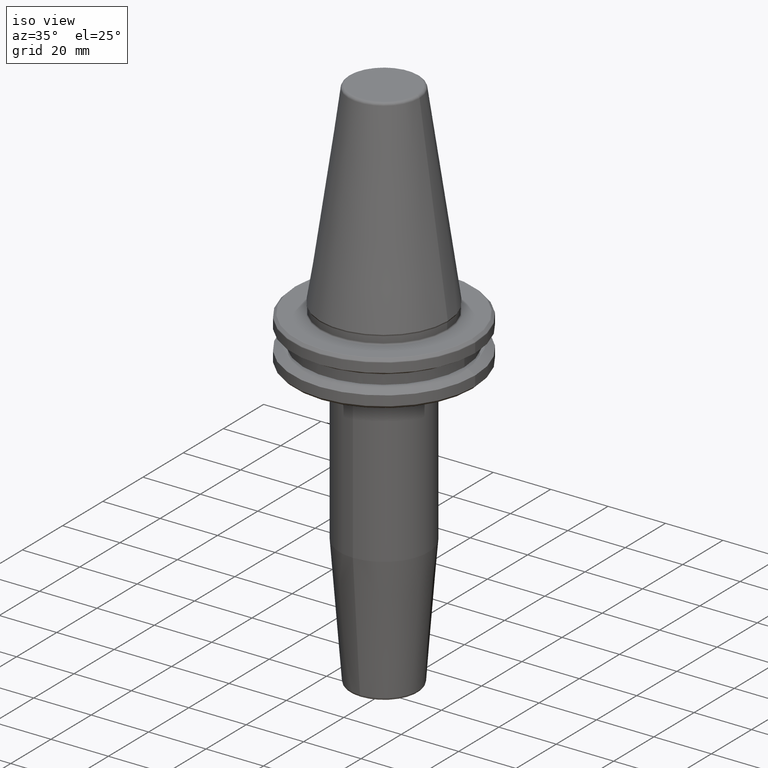
[diagram: clean part render]
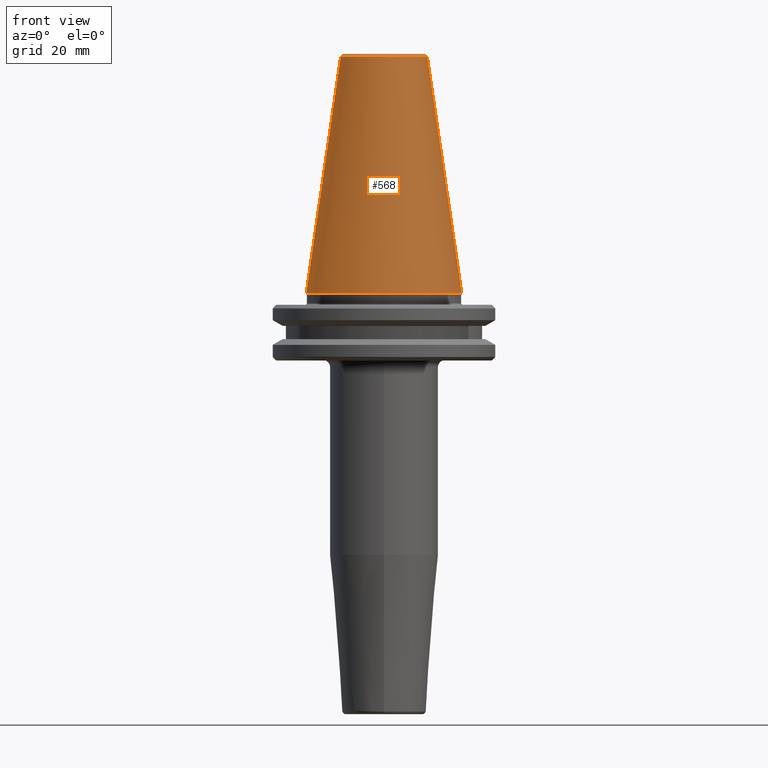
[diagram: tour spotlight — one face highlighted and labeled with its STEP entity id]
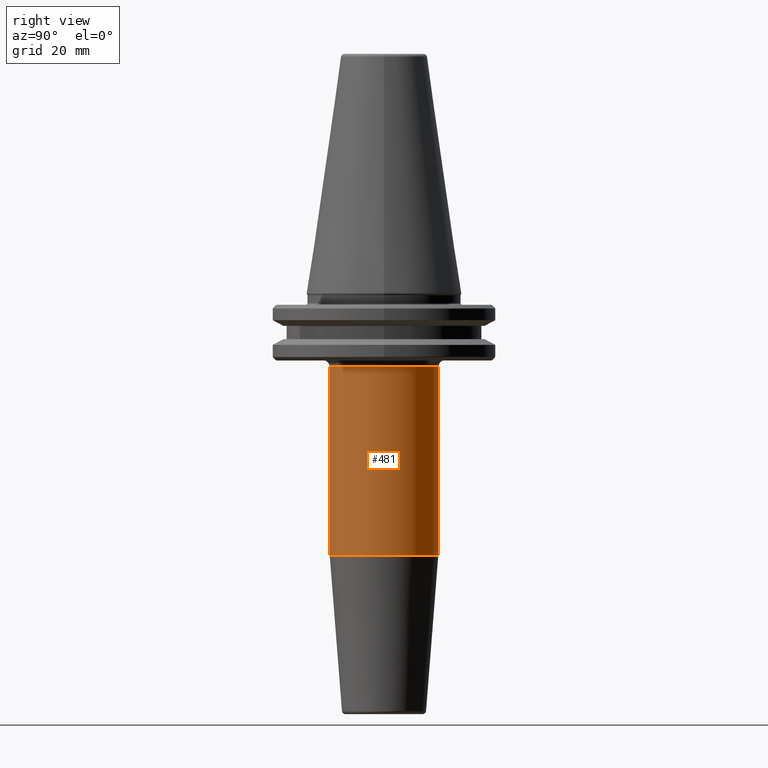
[diagram: tour spotlight — one face highlighted and labeled with its STEP entity id]
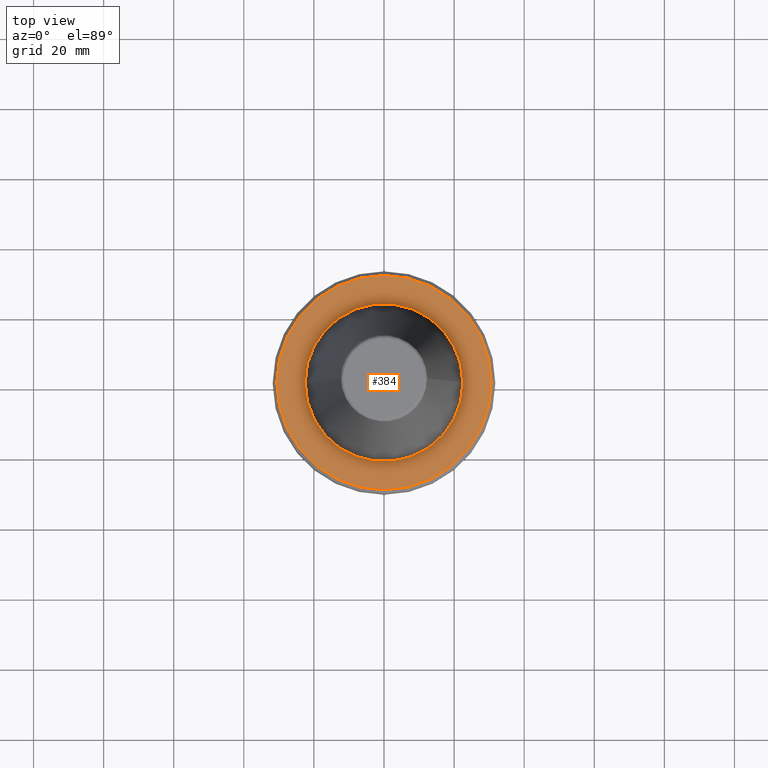
[diagram: tour spotlight — one face highlighted and labeled with its STEP entity id]
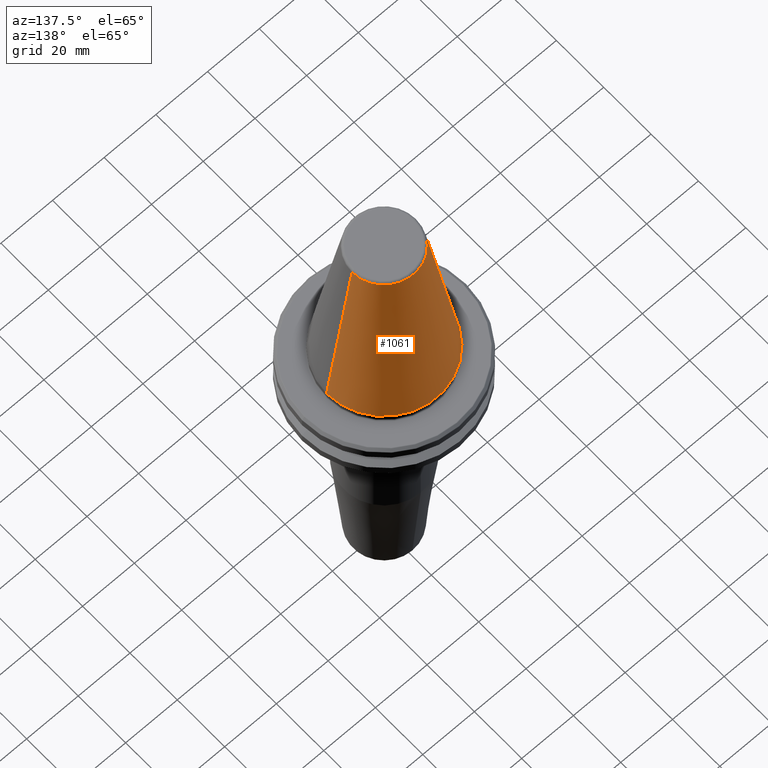
[diagram: tour spotlight — one face highlighted and labeled with its STEP entity id]
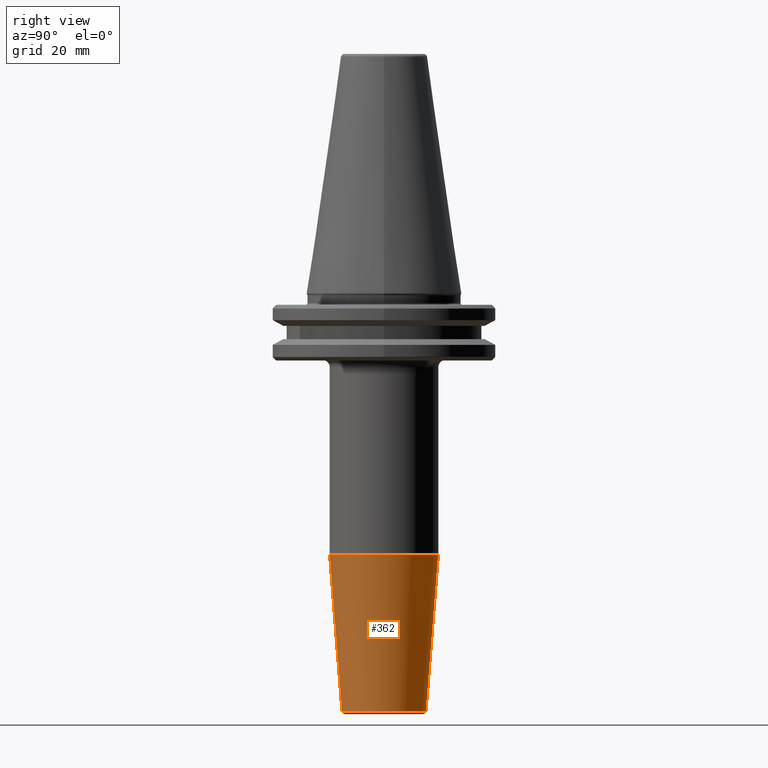
[diagram: tour spotlight — one face highlighted and labeled with its STEP entity id]
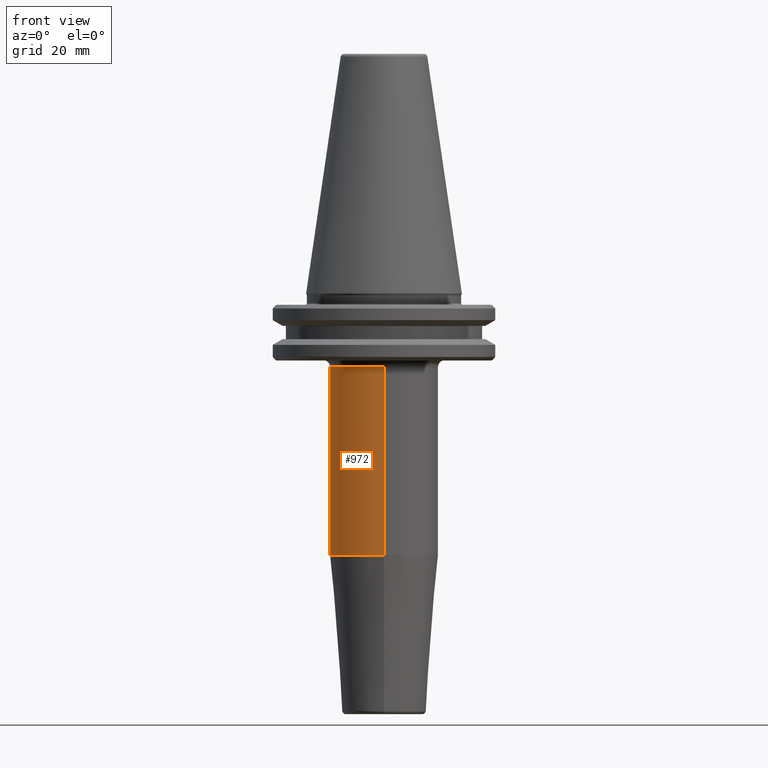
[diagram: tour spotlight — one face highlighted and labeled with its STEP entity id]
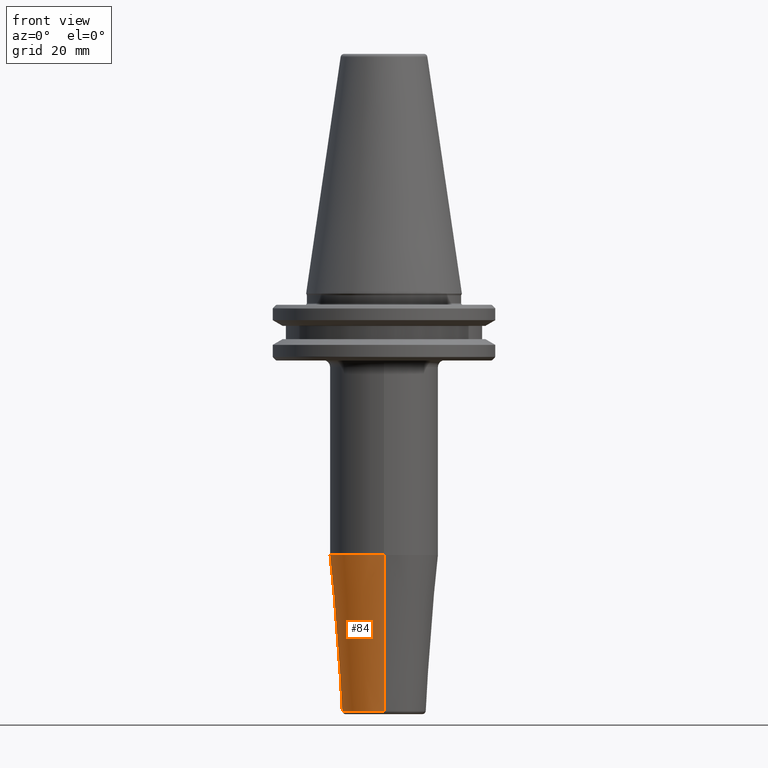
[diagram: tour spotlight — one face highlighted and labeled with its STEP entity id]
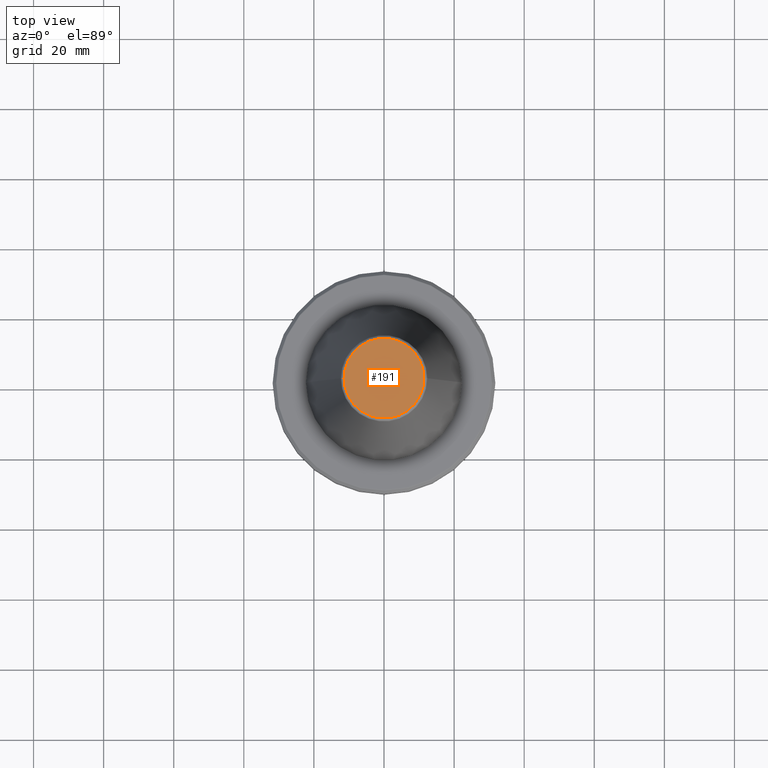
[diagram: tour spotlight — one face highlighted and labeled with its STEP entity id]
A machine part: a face-by-face anatomy tour. The part has 46 B-rep faces; the first image is the clean iso view, then the 8 largest visible faces are spotlighted one at a time (largest first), each with its STEP entity span.

Face 1 — front view, entity #568. In plain terms, the highlighted conical surface has half-angle 8.297 deg.
Definition (entity closure, byte-faithful):
#57 = CONICAL_SURFACE ( 'NONE', #1147, 12.37469537611110800, 0.1448138465474191100 ) ;
#86 = DIRECTION ( 'NONE',  ( 0.1443082272673071000, 1.767266086135364600E-017, -0.9895327864921743500 ) ) ;
#97 = EDGE_LOOP ( 'NONE', ( #1109, #320, #625, #906 ) ) ;
#113 = DIRECTION ( 'NONE',  ( 0.0000000000000000000, 0.0000000000000000000, -1.000000000000000000 ) ) ;
#178 = DIRECTION ( 'NONE',  ( -0.1443082272673071000, 0.0000000000000000000, -0.9895327864921743500 ) ) ;
#227 = EDGE_CURVE ( 'NONE', #1079, #615, #721, .T. ) ;
#288 = EDGE_CURVE ( 'NONE', #615, #353, #1216, .T. ) ;
#301 = AXIS2_PLACEMENT_3D ( 'NONE', #670, #1095, #1087 ) ;
#320 = ORIENTED_EDGE ( 'NONE', *, *, #388, .F. ) ;
#353 = VERTEX_POINT ( 'NONE', #1077 ) ;
#355 = CARTESIAN_POINT ( 'NONE',  ( -22.22500000000000500, 2.721777511104993200E-015, 0.0000000000000000000 ) ) ;
#388 = EDGE_CURVE ( 'NONE', #1079, #1064, #891, .T. ) ;
#444 = VECTOR ( 'NONE', #178, 1000.000000000000000 ) ;
#496 = DIRECTION ( 'NONE',  ( 1.000000000000000000, 0.0000000000000000000, 0.0000000000000000000 ) ) ;
#497 = FACE_OUTER_BOUND ( 'NONE', #97, .T. ) ;
#501 = DIRECTION ( 'NONE',  ( -0.0000000000000000000, -0.0000000000000000000, 1.000000000000000000 ) ) ;
#568 = ADVANCED_FACE ( 'NONE', ( #497 ), #57, .T. ) ;
#576 = CARTESIAN_POINT ( 'NONE',  ( -12.37469537611110800, 0.0000000000000000000, 67.54430822726729400 ) ) ;
#615 = VERTEX_POINT ( 'NONE', #355 ) ;
#624 = LINE ( 'NONE', #1220, #1114 ) ;
#625 = ORIENTED_EDGE ( 'NONE', *, *, #227, .T. ) ;
#670 = CARTESIAN_POINT ( 'NONE',  ( 0.0000000000000000000, 0.0000000000000000000, 67.54430822726729400 ) ) ;
#721 = LINE ( 'NONE', #853, #444 ) ;
#783 = CARTESIAN_POINT ( 'NONE',  ( 0.0000000000000000000, 0.0000000000000000000, 0.0000000000000000000 ) ) ;
#817 = EDGE_CURVE ( 'NONE', #1064, #353, #624, .T. ) ;
#834 = AXIS2_PLACEMENT_3D ( 'NONE', #783, #501, #496 ) ;
#853 = CARTESIAN_POINT ( 'NONE',  ( -12.37469537611110800, 0.0000000000000000000, 67.54430822726729400 ) ) ;
#891 = CIRCLE ( 'NONE', #301, 12.37469537611110800 ) ;
#906 = ORIENTED_EDGE ( 'NONE', *, *, #288, .T. ) ;
#975 = DIRECTION ( 'NONE',  ( -1.000000000000000000, 0.0000000000000000000, 0.0000000000000000000 ) ) ;
#1064 = VERTEX_POINT ( 'NONE', #1110 ) ;
#1077 = CARTESIAN_POINT ( 'NONE',  ( 22.22500000000000500, 0.0000000000000000000, 0.0000000000000000000 ) ) ;
#1079 = VERTEX_POINT ( 'NONE', #576 ) ;
#1087 = DIRECTION ( 'NONE',  ( 1.000000000000000000, 0.0000000000000000000, 0.0000000000000000000 ) ) ;
#1095 = DIRECTION ( 'NONE',  ( -0.0000000000000000000, -0.0000000000000000000, 1.000000000000000000 ) ) ;
#1109 = ORIENTED_EDGE ( 'NONE', *, *, #817, .F. ) ;
#1110 = CARTESIAN_POINT ( 'NONE',  ( 12.37469537611110800, 2.118620309691397700E-015, 67.54430822726729400 ) ) ;
#1114 = VECTOR ( 'NONE', #86, 1000.000000000000000 ) ;
#1147 = AXIS2_PLACEMENT_3D ( 'NONE', #1172, #113, #975 ) ;
#1172 = CARTESIAN_POINT ( 'NONE',  ( 0.0000000000000000000, 0.0000000000000000000, 67.54430822726729400 ) ) ;
#1216 = CIRCLE ( 'NONE', #834, 22.22500000000000500 ) ;
#1220 = CARTESIAN_POINT ( 'NONE',  ( 12.37469537611110800, 1.515463108277802100E-015, 67.54430822726729400 ) ) ;

Face 2 — right view, entity #481. In plain terms, the highlighted cylindrical surface (partial cylindrical patch) has radius 15.5 mm, axis along (-0, 0, -1).
Definition (entity closure, byte-faithful):
#44 = DIRECTION ( 'NONE',  ( -0.0000000000000000000, 1.946757673717420000E-016, -1.000000000000000000 ) ) ;
#81 = LINE ( 'NONE', #346, #540 ) ;
#114 = EDGE_CURVE ( 'NONE', #369, #626, #673, .T. ) ;
#140 = ORIENTED_EDGE ( 'NONE', *, *, #478, .F. ) ;
#150 = DIRECTION ( 'NONE',  ( 0.0000000000000000000, 1.000000000000000000, 0.0000000000000000000 ) ) ;
#154 = AXIS2_PLACEMENT_3D ( 'NONE', #618, #923, #150 ) ;
#166 = ORIENTED_EDGE ( 'NONE', *, *, #642, .F. ) ;
#252 = DIRECTION ( 'NONE',  ( 0.0000000000000000000, 1.000000000000000000, 2.238352872228135700E-016 ) ) ;
#287 = LINE ( 'NONE', #504, #1040 ) ;
#329 = CARTESIAN_POINT ( 'NONE',  ( 0.0000000000000000000, -6.440995650636741200E-015, -74.60674251911157700 ) ) ;
#332 = DIRECTION ( 'NONE',  ( -0.0000000000000000000, 1.946757673717420000E-016, -1.000000000000000000 ) ) ;
#346 = CARTESIAN_POINT ( 'NONE',  ( 1.898202538678399100E-015, -15.50000000000001100, -120.0000000000000000 ) ) ;
#369 = VERTEX_POINT ( 'NONE', #1169 ) ;
#428 = CARTESIAN_POINT ( 'NONE',  ( 0.0000000000000000000, -1.688026949495919900E-014, -20.98284271247460700 ) ) ;
#448 = CARTESIAN_POINT ( 'NONE',  ( 1.898202538678400300E-015, -15.50000000000003400, -20.98284271247461100 ) ) ;
#453 = EDGE_LOOP ( 'NONE', ( #746, #857, #166, #140 ) ) ;
#478 = EDGE_CURVE ( 'NONE', #369, #873, #287, .T. ) ;
#481 = ADVANCED_FACE ( 'NONE', ( #754 ), #1246, .T. ) ;
#493 = CARTESIAN_POINT ( 'NONE',  ( 1.898202538678398300E-015, 15.50000000000000000, -74.60674251911157700 ) ) ;
#504 = CARTESIAN_POINT ( 'NONE',  ( 0.0000000000000000000, 15.50000000000001400, -120.0000000000000000 ) ) ;
#511 = CIRCLE ( 'NONE', #1171, 15.50000000000000700 ) ;
#539 = DIRECTION ( 'NONE',  ( -0.0000000000000000000, 1.946757673717420000E-016, -1.000000000000000000 ) ) ;
#540 = VECTOR ( 'NONE', #539, 1000.000000000000000 ) ;
#607 = EDGE_CURVE ( 'NONE', #626, #823, #81, .T. ) ;
#618 = CARTESIAN_POINT ( 'NONE',  ( 0.0000000000000000000, 2.395971582958279500E-015, -120.0000000000000000 ) ) ;
#626 = VERTEX_POINT ( 'NONE', #448 ) ;
#642 = EDGE_CURVE ( 'NONE', #873, #823, #511, .T. ) ;
#673 = CIRCLE ( 'NONE', #1203, 15.50000000000001800 ) ;
#746 = ORIENTED_EDGE ( 'NONE', *, *, #114, .T. ) ;
#754 = FACE_OUTER_BOUND ( 'NONE', #453, .T. ) ;
#823 = VERTEX_POINT ( 'NONE', #861 ) ;
#857 = ORIENTED_EDGE ( 'NONE', *, *, #607, .T. ) ;
#861 = CARTESIAN_POINT ( 'NONE',  ( 0.0000000000000000000, -15.50000000000001400, -74.60674251911157700 ) ) ;
#873 = VERTEX_POINT ( 'NONE', #493 ) ;
#923 = DIRECTION ( 'NONE',  ( -0.0000000000000000000, 1.946757673717420000E-016, -1.000000000000000000 ) ) ;
#1040 = VECTOR ( 'NONE', #1182, 1000.000000000000000 ) ;
#1104 = DIRECTION ( 'NONE',  ( 0.0000000000000000000, 1.000000000000000000, 0.0000000000000000000 ) ) ;
#1169 = CARTESIAN_POINT ( 'NONE',  ( 0.0000000000000000000, 15.50000000000000000, -20.98284271247460400 ) ) ;
#1171 = AXIS2_PLACEMENT_3D ( 'NONE', #329, #332, #1104 ) ;
#1182 = DIRECTION ( 'NONE',  ( -0.0000000000000000000, 1.946757673717420000E-016, -1.000000000000000000 ) ) ;
#1203 = AXIS2_PLACEMENT_3D ( 'NONE', #428, #44, #252 ) ;
#1246 = CYLINDRICAL_SURFACE ( 'NONE', #154, 15.50000000000001200 ) ;

Face 3 — top view, entity #384. In plain terms, the highlighted planar face has unit normal (0, -0, 1).
Definition (entity closure, byte-faithful):
#1 = EDGE_CURVE ( 'NONE', #446, #973, #450, .T. ) ;
#6 = CARTESIAN_POINT ( 'NONE',  ( -30.58431457505076200, 3.762817415969875600E-015, -3.199999999999994400 ) ) ;
#47 = AXIS2_PLACEMENT_3D ( 'NONE', #106, #771, #777 ) ;
#54 = CARTESIAN_POINT ( 'NONE',  ( 0.0000000000000000000, 0.0000000000000000000, -3.199999999999994400 ) ) ;
#62 = EDGE_CURVE ( 'NONE', #888, #1140, #1151, .T. ) ;
#104 = CARTESIAN_POINT ( 'NONE',  ( 0.0000000000000000000, 0.0000000000000000000, -3.200000000000000200 ) ) ;
#106 = CARTESIAN_POINT ( 'NONE',  ( 0.0000000000000000000, 0.0000000000000000000, -3.199999999999994400 ) ) ;
#112 = AXIS2_PLACEMENT_3D ( 'NONE', #200, #1167, #684 ) ;
#116 = CARTESIAN_POINT ( 'NONE',  ( -22.50000000000000000, 2.755455298081544800E-015, -3.199999999999996600 ) ) ;
#198 = AXIS2_PLACEMENT_3D ( 'NONE', #54, #1103, #1115 ) ;
#200 = CARTESIAN_POINT ( 'NONE',  ( 0.0000000000000000000, 0.0000000000000000000, -3.199999999999994400 ) ) ;
#217 = FACE_OUTER_BOUND ( 'NONE', #515, .T. ) ;
#277 = ORIENTED_EDGE ( 'NONE', *, *, #543, .F. ) ;
#293 = AXIS2_PLACEMENT_3D ( 'NONE', #104, #678, #581 ) ;
#304 = CARTESIAN_POINT ( 'NONE',  ( 30.58431457505076200, 0.0000000000000000000, -3.199999999999994400 ) ) ;
#384 = ADVANCED_FACE ( 'NONE', ( #217, #956 ), #782, .T. ) ;
#427 = ORIENTED_EDGE ( 'NONE', *, *, #62, .T. ) ;
#446 = VERTEX_POINT ( 'NONE', #116 ) ;
#447 = CARTESIAN_POINT ( 'NONE',  ( 0.0000000000000000000, 0.0000000000000000000, -3.199999999999994400 ) ) ;
#450 = CIRCLE ( 'NONE', #469, 22.50000000000000000 ) ;
#469 = AXIS2_PLACEMENT_3D ( 'NONE', #447, #924, #717 ) ;
#477 = CIRCLE ( 'NONE', #47, 30.58431457505076200 ) ;
#515 = EDGE_LOOP ( 'NONE', ( #427, #1121 ) ) ;
#543 = EDGE_CURVE ( 'NONE', #973, #446, #731, .T. ) ;
#548 = EDGE_CURVE ( 'NONE', #1140, #888, #477, .T. ) ;
#581 = DIRECTION ( 'NONE',  ( 1.000000000000000000, 0.0000000000000000000, 0.0000000000000000000 ) ) ;
#641 = ORIENTED_EDGE ( 'NONE', *, *, #1, .F. ) ;
#678 = DIRECTION ( 'NONE',  ( 0.0000000000000000000, -0.0000000000000000000, 1.000000000000000000 ) ) ;
#684 = DIRECTION ( 'NONE',  ( 1.000000000000000000, 0.0000000000000000000, 0.0000000000000000000 ) ) ;
#717 = DIRECTION ( 'NONE',  ( 1.000000000000000000, 0.0000000000000000000, 0.0000000000000000000 ) ) ;
#731 = CIRCLE ( 'NONE', #112, 22.50000000000000000 ) ;
#771 = DIRECTION ( 'NONE',  ( -0.0000000000000000000, -0.0000000000000000000, 1.000000000000000000 ) ) ;
#777 = DIRECTION ( 'NONE',  ( 1.000000000000000000, 0.0000000000000000000, 0.0000000000000000000 ) ) ;
#782 = PLANE ( 'NONE',  #293 ) ;
#786 = CARTESIAN_POINT ( 'NONE',  ( 22.50000000000000000, 0.0000000000000000000, -3.199999999999996600 ) ) ;
#888 = VERTEX_POINT ( 'NONE', #304 ) ;
#924 = DIRECTION ( 'NONE',  ( -0.0000000000000000000, -0.0000000000000000000, 1.000000000000000000 ) ) ;
#956 = FACE_BOUND ( 'NONE', #1149, .T. ) ;
#973 = VERTEX_POINT ( 'NONE', #786 ) ;
#1103 = DIRECTION ( 'NONE',  ( -0.0000000000000000000, -0.0000000000000000000, 1.000000000000000000 ) ) ;
#1115 = DIRECTION ( 'NONE',  ( 1.000000000000000000, 0.0000000000000000000, 0.0000000000000000000 ) ) ;
#1121 = ORIENTED_EDGE ( 'NONE', *, *, #548, .T. ) ;
#1140 = VERTEX_POINT ( 'NONE', #6 ) ;
#1149 = EDGE_LOOP ( 'NONE', ( #277, #641 ) ) ;
#1151 = CIRCLE ( 'NONE', #198, 30.58431457505076200 ) ;
#1167 = DIRECTION ( 'NONE',  ( -0.0000000000000000000, -0.0000000000000000000, 1.000000000000000000 ) ) ;

Face 4 — auxiliary view, entity #1061. In plain terms, the highlighted conical surface has half-angle 8.297 deg.
Definition (entity closure, byte-faithful):
#64 = CIRCLE ( 'NONE', #546, 22.22500000000000500 ) ;
#83 = ORIENTED_EDGE ( 'NONE', *, *, #443, .F. ) ;
#86 = DIRECTION ( 'NONE',  ( 0.1443082272673071000, 1.767266086135364600E-017, -0.9895327864921743500 ) ) ;
#102 = ORIENTED_EDGE ( 'NONE', *, *, #1249, .T. ) ;
#130 = DIRECTION ( 'NONE',  ( -1.000000000000000000, 0.0000000000000000000, 0.0000000000000000000 ) ) ;
#178 = DIRECTION ( 'NONE',  ( -0.1443082272673071000, 0.0000000000000000000, -0.9895327864921743500 ) ) ;
#184 = CONICAL_SURFACE ( 'NONE', #348, 12.37469537611110800, 0.1448138465474191100 ) ;
#227 = EDGE_CURVE ( 'NONE', #1079, #615, #721, .T. ) ;
#232 = DIRECTION ( 'NONE',  ( 1.000000000000000000, 0.0000000000000000000, 0.0000000000000000000 ) ) ;
#240 = AXIS2_PLACEMENT_3D ( 'NONE', #990, #597, #232 ) ;
#330 = CARTESIAN_POINT ( 'NONE',  ( 0.0000000000000000000, 0.0000000000000000000, 67.54430822726729400 ) ) ;
#331 = CARTESIAN_POINT ( 'NONE',  ( 0.0000000000000000000, 0.0000000000000000000, 0.0000000000000000000 ) ) ;
#348 = AXIS2_PLACEMENT_3D ( 'NONE', #330, #900, #130 ) ;
#353 = VERTEX_POINT ( 'NONE', #1077 ) ;
#355 = CARTESIAN_POINT ( 'NONE',  ( -22.22500000000000500, 2.721777511104993200E-015, 0.0000000000000000000 ) ) ;
#420 = DIRECTION ( 'NONE',  ( 1.000000000000000000, 0.0000000000000000000, 0.0000000000000000000 ) ) ;
#443 = EDGE_CURVE ( 'NONE', #1064, #1079, #828, .T. ) ;
#444 = VECTOR ( 'NONE', #178, 1000.000000000000000 ) ;
#474 = FACE_OUTER_BOUND ( 'NONE', #1083, .T. ) ;
#546 = AXIS2_PLACEMENT_3D ( 'NONE', #331, #1011, #420 ) ;
#576 = CARTESIAN_POINT ( 'NONE',  ( -12.37469537611110800, 0.0000000000000000000, 67.54430822726729400 ) ) ;
#597 = DIRECTION ( 'NONE',  ( -0.0000000000000000000, -0.0000000000000000000, 1.000000000000000000 ) ) ;
#615 = VERTEX_POINT ( 'NONE', #355 ) ;
#624 = LINE ( 'NONE', #1220, #1114 ) ;
#721 = LINE ( 'NONE', #853, #444 ) ;
#817 = EDGE_CURVE ( 'NONE', #1064, #353, #624, .T. ) ;
#828 = CIRCLE ( 'NONE', #240, 12.37469537611110800 ) ;
#853 = CARTESIAN_POINT ( 'NONE',  ( -12.37469537611110800, 0.0000000000000000000, 67.54430822726729400 ) ) ;
#900 = DIRECTION ( 'NONE',  ( 0.0000000000000000000, 0.0000000000000000000, -1.000000000000000000 ) ) ;
#990 = CARTESIAN_POINT ( 'NONE',  ( 0.0000000000000000000, 0.0000000000000000000, 67.54430822726729400 ) ) ;
#1011 = DIRECTION ( 'NONE',  ( -0.0000000000000000000, -0.0000000000000000000, 1.000000000000000000 ) ) ;
#1048 = ORIENTED_EDGE ( 'NONE', *, *, #227, .F. ) ;
#1061 = ADVANCED_FACE ( 'NONE', ( #474 ), #184, .T. ) ;
#1064 = VERTEX_POINT ( 'NONE', #1110 ) ;
#1077 = CARTESIAN_POINT ( 'NONE',  ( 22.22500000000000500, 0.0000000000000000000, 0.0000000000000000000 ) ) ;
#1079 = VERTEX_POINT ( 'NONE', #576 ) ;
#1083 = EDGE_LOOP ( 'NONE', ( #83, #1118, #102, #1048 ) ) ;
#1110 = CARTESIAN_POINT ( 'NONE',  ( 12.37469537611110800, 2.118620309691397700E-015, 67.54430822726729400 ) ) ;
#1114 = VECTOR ( 'NONE', #86, 1000.000000000000000 ) ;
#1118 = ORIENTED_EDGE ( 'NONE', *, *, #817, .T. ) ;
#1220 = CARTESIAN_POINT ( 'NONE',  ( 12.37469537611110800, 1.515463108277802100E-015, 67.54430822726729400 ) ) ;
#1249 = EDGE_CURVE ( 'NONE', #353, #615, #64, .T. ) ;

Face 5 — right view, entity #362. In plain terms, the highlighted conical surface has half-angle 4.5 deg.
Definition (entity closure, byte-faithful):
#71 = EDGE_LOOP ( 'NONE', ( #551, #91, #590, #1197 ) ) ;
#91 = ORIENTED_EDGE ( 'NONE', *, *, #202, .T. ) ;
#202 = EDGE_CURVE ( 'NONE', #498, #873, #468, .T. ) ;
#207 = DIRECTION ( 'NONE',  ( 0.0000000000000000000, -1.000000000000000000, 0.0000000000000000000 ) ) ;
#218 = VECTOR ( 'NONE', #553, 1000.000000000000000 ) ;
#329 = CARTESIAN_POINT ( 'NONE',  ( 0.0000000000000000000, -6.440995650636741200E-015, -74.60674251911157700 ) ) ;
#332 = DIRECTION ( 'NONE',  ( -0.0000000000000000000, 1.946757673717420000E-016, -1.000000000000000000 ) ) ;
#359 = EDGE_CURVE ( 'NONE', #498, #426, #1026, .T. ) ;
#362 = ADVANCED_FACE ( 'NONE', ( #529 ), #720, .T. ) ;
#368 = AXIS2_PLACEMENT_3D ( 'NONE', #797, #686, #207 ) ;
#393 = DIRECTION ( 'NONE',  ( -0.0000000000000000000, 1.946757673717420000E-016, -1.000000000000000000 ) ) ;
#406 = CARTESIAN_POINT ( 'NONE',  ( 0.0000000000000000000, 2.216569900254646300E-015, -119.0784590957278200 ) ) ;
#409 = DIRECTION ( 'NONE',  ( 0.0000000000000000000, -0.07845909572783693600, 0.9969173337331286300 ) ) ;
#426 = VERTEX_POINT ( 'NONE', #992 ) ;
#440 = CARTESIAN_POINT ( 'NONE',  ( 0.0000000000000000000, 12.00000000000000000, -119.0784590957278200 ) ) ;
#468 = LINE ( 'NONE', #742, #218 ) ;
#493 = CARTESIAN_POINT ( 'NONE',  ( 1.898202538678398300E-015, 15.50000000000000000, -74.60674251911157700 ) ) ;
#498 = VERTEX_POINT ( 'NONE', #440 ) ;
#511 = CIRCLE ( 'NONE', #1171, 15.50000000000000700 ) ;
#529 = FACE_OUTER_BOUND ( 'NONE', #71, .T. ) ;
#547 = AXIS2_PLACEMENT_3D ( 'NONE', #406, #393, #884 ) ;
#551 = ORIENTED_EDGE ( 'NONE', *, *, #359, .F. ) ;
#553 = DIRECTION ( 'NONE',  ( 9.608468044709104300E-018, 0.07845909572783654800, 0.9969173337331286300 ) ) ;
#590 = ORIENTED_EDGE ( 'NONE', *, *, #642, .T. ) ;
#596 = CARTESIAN_POINT ( 'NONE',  ( 0.0000000000000000000, -11.99999999999999600, -119.0784590957278200 ) ) ;
#642 = EDGE_CURVE ( 'NONE', #873, #823, #511, .T. ) ;
#686 = DIRECTION ( 'NONE',  ( 0.0000000000000000000, -1.946757673717420000E-016, 1.000000000000000000 ) ) ;
#720 = CONICAL_SURFACE ( 'NONE', #368, 11.99999999999999800, 0.07853981633973659800 ) ;
#723 = EDGE_CURVE ( 'NONE', #426, #823, #1003, .T. ) ;
#742 = CARTESIAN_POINT ( 'NONE',  ( 1.469576158976823800E-015, 12.00000000000000000, -119.0784590957278200 ) ) ;
#797 = CARTESIAN_POINT ( 'NONE',  ( 0.0000000000000000000, 2.216569900254646300E-015, -119.0784590957278200 ) ) ;
#823 = VERTEX_POINT ( 'NONE', #861 ) ;
#861 = CARTESIAN_POINT ( 'NONE',  ( 0.0000000000000000000, -15.50000000000001400, -74.60674251911157700 ) ) ;
#873 = VERTEX_POINT ( 'NONE', #493 ) ;
#884 = DIRECTION ( 'NONE',  ( 0.0000000000000000000, 1.000000000000000000, 0.0000000000000000000 ) ) ;
#992 = CARTESIAN_POINT ( 'NONE',  ( 1.469576158976823800E-015, -11.99999999999999600, -119.0784590957278200 ) ) ;
#1003 = LINE ( 'NONE', #596, #1245 ) ;
#1026 = CIRCLE ( 'NONE', #547, 11.99999999999999800 ) ;
#1104 = DIRECTION ( 'NONE',  ( 0.0000000000000000000, 1.000000000000000000, 0.0000000000000000000 ) ) ;
#1171 = AXIS2_PLACEMENT_3D ( 'NONE', #329, #332, #1104 ) ;
#1197 = ORIENTED_EDGE ( 'NONE', *, *, #723, .F. ) ;
#1245 = VECTOR ( 'NONE', #409, 1000.000000000000000 ) ;

Face 6 — front view, entity #972. In plain terms, the highlighted cylindrical surface (partial cylindrical patch) has radius 15.5 mm, axis along (-0, 0, -1).
Definition (entity closure, byte-faithful):
#24 = CYLINDRICAL_SURFACE ( 'NONE', #220, 15.50000000000001200 ) ;
#81 = LINE ( 'NONE', #346, #540 ) ;
#169 = ORIENTED_EDGE ( 'NONE', *, *, #636, .T. ) ;
#220 = AXIS2_PLACEMENT_3D ( 'NONE', #988, #1086, #1168 ) ;
#234 = CARTESIAN_POINT ( 'NONE',  ( 0.0000000000000000000, -1.688026949495919900E-014, -20.98284271247460700 ) ) ;
#253 = ORIENTED_EDGE ( 'NONE', *, *, #607, .F. ) ;
#286 = CIRCLE ( 'NONE', #1162, 15.50000000000001800 ) ;
#287 = LINE ( 'NONE', #504, #1040 ) ;
#346 = CARTESIAN_POINT ( 'NONE',  ( 1.898202538678399100E-015, -15.50000000000001100, -120.0000000000000000 ) ) ;
#352 = CIRCLE ( 'NONE', #1139, 15.50000000000000700 ) ;
#369 = VERTEX_POINT ( 'NONE', #1169 ) ;
#417 = DIRECTION ( 'NONE',  ( 0.0000000000000000000, 1.000000000000000000, 2.238352872228135700E-016 ) ) ;
#448 = CARTESIAN_POINT ( 'NONE',  ( 1.898202538678400300E-015, -15.50000000000003400, -20.98284271247461100 ) ) ;
#478 = EDGE_CURVE ( 'NONE', #369, #873, #287, .T. ) ;
#493 = CARTESIAN_POINT ( 'NONE',  ( 1.898202538678398300E-015, 15.50000000000000000, -74.60674251911157700 ) ) ;
#504 = CARTESIAN_POINT ( 'NONE',  ( 0.0000000000000000000, 15.50000000000001400, -120.0000000000000000 ) ) ;
#534 = DIRECTION ( 'NONE',  ( 0.0000000000000000000, 1.000000000000000000, 0.0000000000000000000 ) ) ;
#539 = DIRECTION ( 'NONE',  ( -0.0000000000000000000, 1.946757673717420000E-016, -1.000000000000000000 ) ) ;
#540 = VECTOR ( 'NONE', #539, 1000.000000000000000 ) ;
#556 = FACE_OUTER_BOUND ( 'NONE', #632, .T. ) ;
#607 = EDGE_CURVE ( 'NONE', #626, #823, #81, .T. ) ;
#626 = VERTEX_POINT ( 'NONE', #448 ) ;
#630 = EDGE_CURVE ( 'NONE', #823, #873, #352, .T. ) ;
#632 = EDGE_LOOP ( 'NONE', ( #253, #169, #1247, #1217 ) ) ;
#636 = EDGE_CURVE ( 'NONE', #626, #369, #286, .T. ) ;
#722 = CARTESIAN_POINT ( 'NONE',  ( 0.0000000000000000000, -6.440995650636741200E-015, -74.60674251911157700 ) ) ;
#805 = DIRECTION ( 'NONE',  ( -0.0000000000000000000, 1.946757673717420000E-016, -1.000000000000000000 ) ) ;
#823 = VERTEX_POINT ( 'NONE', #861 ) ;
#861 = CARTESIAN_POINT ( 'NONE',  ( 0.0000000000000000000, -15.50000000000001400, -74.60674251911157700 ) ) ;
#873 = VERTEX_POINT ( 'NONE', #493 ) ;
#972 = ADVANCED_FACE ( 'NONE', ( #556 ), #24, .T. ) ;
#988 = CARTESIAN_POINT ( 'NONE',  ( 0.0000000000000000000, 2.395971582958279500E-015, -120.0000000000000000 ) ) ;
#1040 = VECTOR ( 'NONE', #1182, 1000.000000000000000 ) ;
#1086 = DIRECTION ( 'NONE',  ( -0.0000000000000000000, 1.946757673717420000E-016, -1.000000000000000000 ) ) ;
#1139 = AXIS2_PLACEMENT_3D ( 'NONE', #722, #1219, #534 ) ;
#1162 = AXIS2_PLACEMENT_3D ( 'NONE', #234, #805, #417 ) ;
#1168 = DIRECTION ( 'NONE',  ( 0.0000000000000000000, 1.000000000000000000, 0.0000000000000000000 ) ) ;
#1169 = CARTESIAN_POINT ( 'NONE',  ( 0.0000000000000000000, 15.50000000000000000, -20.98284271247460400 ) ) ;
#1182 = DIRECTION ( 'NONE',  ( -0.0000000000000000000, 1.946757673717420000E-016, -1.000000000000000000 ) ) ;
#1217 = ORIENTED_EDGE ( 'NONE', *, *, #630, .F. ) ;
#1219 = DIRECTION ( 'NONE',  ( -0.0000000000000000000, 1.946757673717420000E-016, -1.000000000000000000 ) ) ;
#1247 = ORIENTED_EDGE ( 'NONE', *, *, #478, .T. ) ;

Face 7 — front view, entity #84. In plain terms, the highlighted conical surface has half-angle 4.5 deg.
Definition (entity closure, byte-faithful):
#84 = ADVANCED_FACE ( 'NONE', ( #475 ), #984, .T. ) ;
#118 = ORIENTED_EDGE ( 'NONE', *, *, #242, .F. ) ;
#175 = CIRCLE ( 'NONE', #653, 11.99999999999999800 ) ;
#189 = ORIENTED_EDGE ( 'NONE', *, *, #723, .T. ) ;
#202 = EDGE_CURVE ( 'NONE', #498, #873, #468, .T. ) ;
#218 = VECTOR ( 'NONE', #553, 1000.000000000000000 ) ;
#225 = CARTESIAN_POINT ( 'NONE',  ( 0.0000000000000000000, 2.216569900254646300E-015, -119.0784590957278200 ) ) ;
#242 = EDGE_CURVE ( 'NONE', #426, #498, #175, .T. ) ;
#324 = DIRECTION ( 'NONE',  ( 0.0000000000000000000, 1.000000000000000000, 0.0000000000000000000 ) ) ;
#352 = CIRCLE ( 'NONE', #1139, 15.50000000000000700 ) ;
#401 = AXIS2_PLACEMENT_3D ( 'NONE', #815, #706, #614 ) ;
#409 = DIRECTION ( 'NONE',  ( 0.0000000000000000000, -0.07845909572783693600, 0.9969173337331286300 ) ) ;
#426 = VERTEX_POINT ( 'NONE', #992 ) ;
#440 = CARTESIAN_POINT ( 'NONE',  ( 0.0000000000000000000, 12.00000000000000000, -119.0784590957278200 ) ) ;
#455 = EDGE_LOOP ( 'NONE', ( #603, #118, #189, #1241 ) ) ;
#468 = LINE ( 'NONE', #742, #218 ) ;
#475 = FACE_OUTER_BOUND ( 'NONE', #455, .T. ) ;
#493 = CARTESIAN_POINT ( 'NONE',  ( 1.898202538678398300E-015, 15.50000000000000000, -74.60674251911157700 ) ) ;
#498 = VERTEX_POINT ( 'NONE', #440 ) ;
#534 = DIRECTION ( 'NONE',  ( 0.0000000000000000000, 1.000000000000000000, 0.0000000000000000000 ) ) ;
#553 = DIRECTION ( 'NONE',  ( 9.608468044709104300E-018, 0.07845909572783654800, 0.9969173337331286300 ) ) ;
#596 = CARTESIAN_POINT ( 'NONE',  ( 0.0000000000000000000, -11.99999999999999600, -119.0784590957278200 ) ) ;
#603 = ORIENTED_EDGE ( 'NONE', *, *, #202, .F. ) ;
#614 = DIRECTION ( 'NONE',  ( 0.0000000000000000000, -1.000000000000000000, 0.0000000000000000000 ) ) ;
#630 = EDGE_CURVE ( 'NONE', #823, #873, #352, .T. ) ;
#653 = AXIS2_PLACEMENT_3D ( 'NONE', #225, #1089, #324 ) ;
#706 = DIRECTION ( 'NONE',  ( 0.0000000000000000000, -1.946757673717420000E-016, 1.000000000000000000 ) ) ;
#722 = CARTESIAN_POINT ( 'NONE',  ( 0.0000000000000000000, -6.440995650636741200E-015, -74.60674251911157700 ) ) ;
#723 = EDGE_CURVE ( 'NONE', #426, #823, #1003, .T. ) ;
#742 = CARTESIAN_POINT ( 'NONE',  ( 1.469576158976823800E-015, 12.00000000000000000, -119.0784590957278200 ) ) ;
#815 = CARTESIAN_POINT ( 'NONE',  ( 0.0000000000000000000, 2.216569900254646300E-015, -119.0784590957278200 ) ) ;
#823 = VERTEX_POINT ( 'NONE', #861 ) ;
#861 = CARTESIAN_POINT ( 'NONE',  ( 0.0000000000000000000, -15.50000000000001400, -74.60674251911157700 ) ) ;
#873 = VERTEX_POINT ( 'NONE', #493 ) ;
#984 = CONICAL_SURFACE ( 'NONE', #401, 11.99999999999999800, 0.07853981633973659800 ) ;
#992 = CARTESIAN_POINT ( 'NONE',  ( 1.469576158976823800E-015, -11.99999999999999600, -119.0784590957278200 ) ) ;
#1003 = LINE ( 'NONE', #596, #1245 ) ;
#1089 = DIRECTION ( 'NONE',  ( -0.0000000000000000000, 1.946757673717420000E-016, -1.000000000000000000 ) ) ;
#1139 = AXIS2_PLACEMENT_3D ( 'NONE', #722, #1219, #534 ) ;
#1219 = DIRECTION ( 'NONE',  ( -0.0000000000000000000, 1.946757673717420000E-016, -1.000000000000000000 ) ) ;
#1241 = ORIENTED_EDGE ( 'NONE', *, *, #630, .T. ) ;
#1245 = VECTOR ( 'NONE', #409, 1000.000000000000000 ) ;

Face 8 — top view, entity #191. In plain terms, the highlighted planar face has unit normal (0, -0, 1).
Definition (entity closure, byte-faithful):
#38 = EDGE_CURVE ( 'NONE', #591, #1127, #691, .T. ) ;
#46 = AXIS2_PLACEMENT_3D ( 'NONE', #608, #808, #1123 ) ;
#68 = EDGE_CURVE ( 'NONE', #1127, #591, #902, .T. ) ;
#191 = ADVANCED_FACE ( 'NONE', ( #928 ), #1055, .T. ) ;
#311 = AXIS2_PLACEMENT_3D ( 'NONE', #725, #1020, #701 ) ;
#321 = ORIENTED_EDGE ( 'NONE', *, *, #68, .T. ) ;
#552 = EDGE_LOOP ( 'NONE', ( #736, #321 ) ) ;
#591 = VERTEX_POINT ( 'NONE', #1130 ) ;
#608 = CARTESIAN_POINT ( 'NONE',  ( 0.0000000000000000000, 0.0000000000000000000, 68.40000000000000600 ) ) ;
#691 = CIRCLE ( 'NONE', #311, 11.38516258961893100 ) ;
#701 = DIRECTION ( 'NONE',  ( 1.000000000000000000, 0.0000000000000000000, 0.0000000000000000000 ) ) ;
#725 = CARTESIAN_POINT ( 'NONE',  ( 0.0000000000000000000, 0.0000000000000000000, 68.40000000000000600 ) ) ;
#736 = ORIENTED_EDGE ( 'NONE', *, *, #38, .T. ) ;
#808 = DIRECTION ( 'NONE',  ( -0.0000000000000000000, -0.0000000000000000000, 1.000000000000000000 ) ) ;
#848 = CARTESIAN_POINT ( 'NONE',  ( 0.0000000000000000000, -8.337524199435086500E-014, 68.39999999999999100 ) ) ;
#877 = CARTESIAN_POINT ( 'NONE',  ( -11.38516258961893100, 1.454871700296352000E-015, 68.40000000000000600 ) ) ;
#902 = CIRCLE ( 'NONE', #46, 11.38516258961893100 ) ;
#928 = FACE_OUTER_BOUND ( 'NONE', #552, .T. ) ;
#942 = DIRECTION ( 'NONE',  ( 0.0000000000000000000, -0.0000000000000000000, 1.000000000000000000 ) ) ;
#971 = AXIS2_PLACEMENT_3D ( 'NONE', #848, #942, #1235 ) ;
#1020 = DIRECTION ( 'NONE',  ( -0.0000000000000000000, -0.0000000000000000000, 1.000000000000000000 ) ) ;
#1055 = PLANE ( 'NONE',  #971 ) ;
#1123 = DIRECTION ( 'NONE',  ( 1.000000000000000000, 0.0000000000000000000, 0.0000000000000000000 ) ) ;
#1127 = VERTEX_POINT ( 'NONE', #877 ) ;
#1130 = CARTESIAN_POINT ( 'NONE',  ( 11.38516258961893100, 0.0000000000000000000, 68.40000000000000600 ) ) ;
#1235 = DIRECTION ( 'NONE',  ( 1.000000000000000000, 0.0000000000000000000, 0.0000000000000000000 ) ) ;